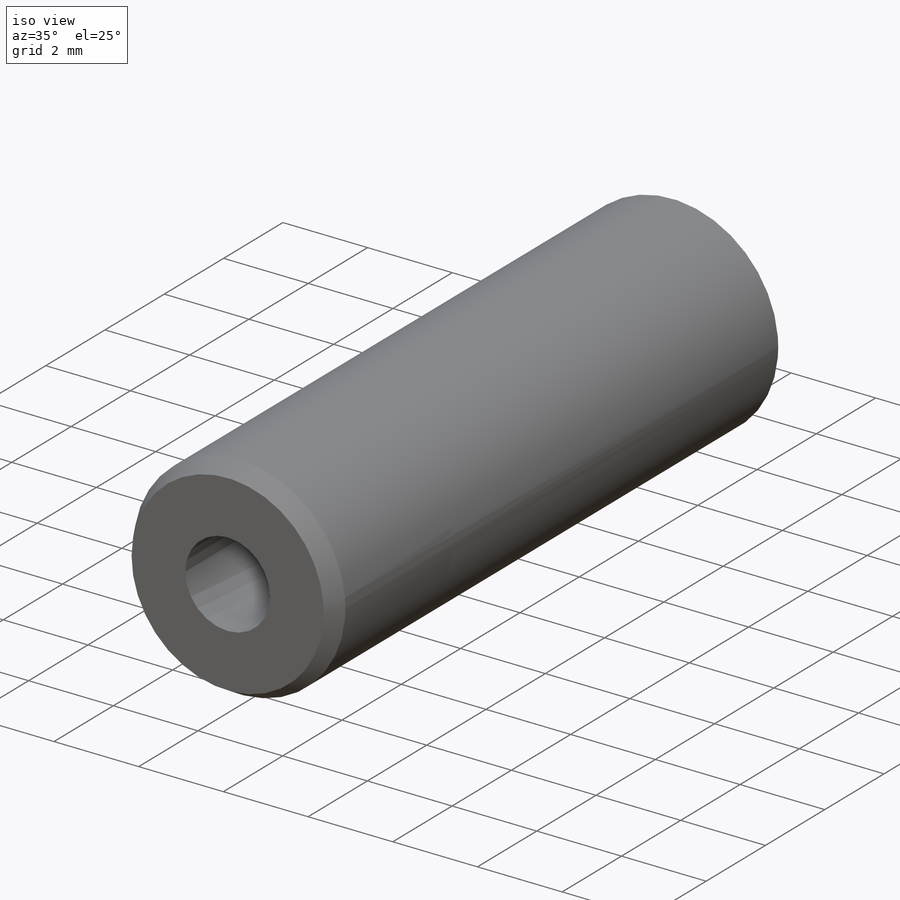
[diagram: iso view]
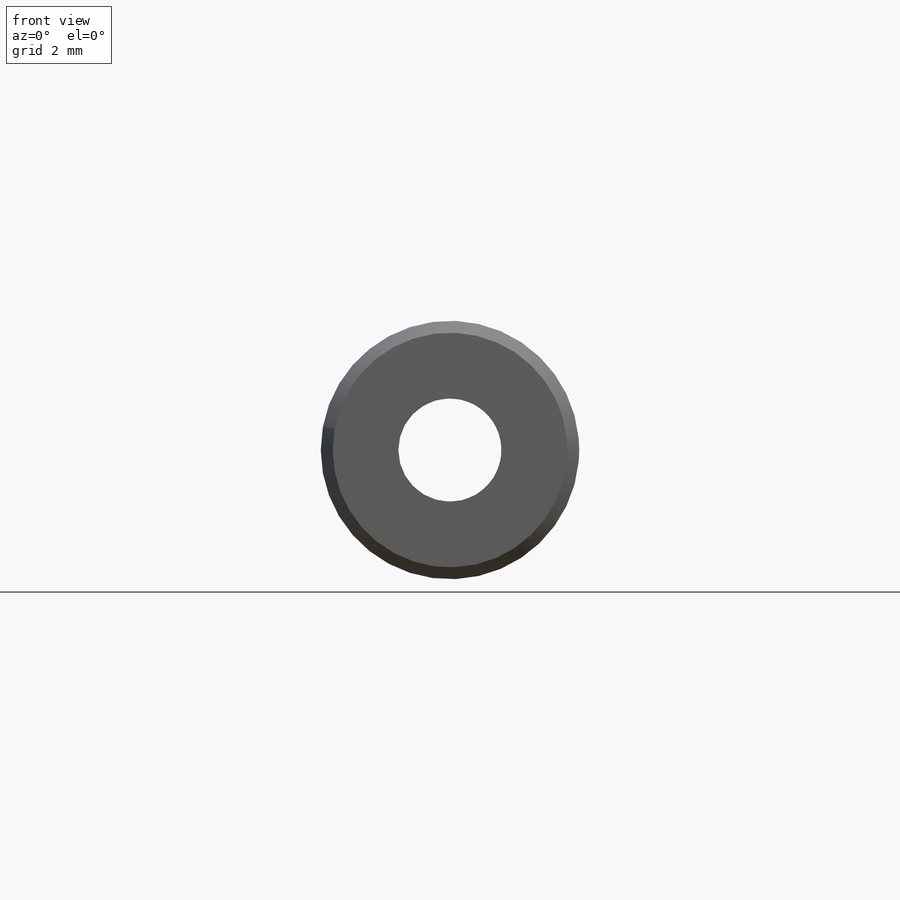
[diagram: front view]
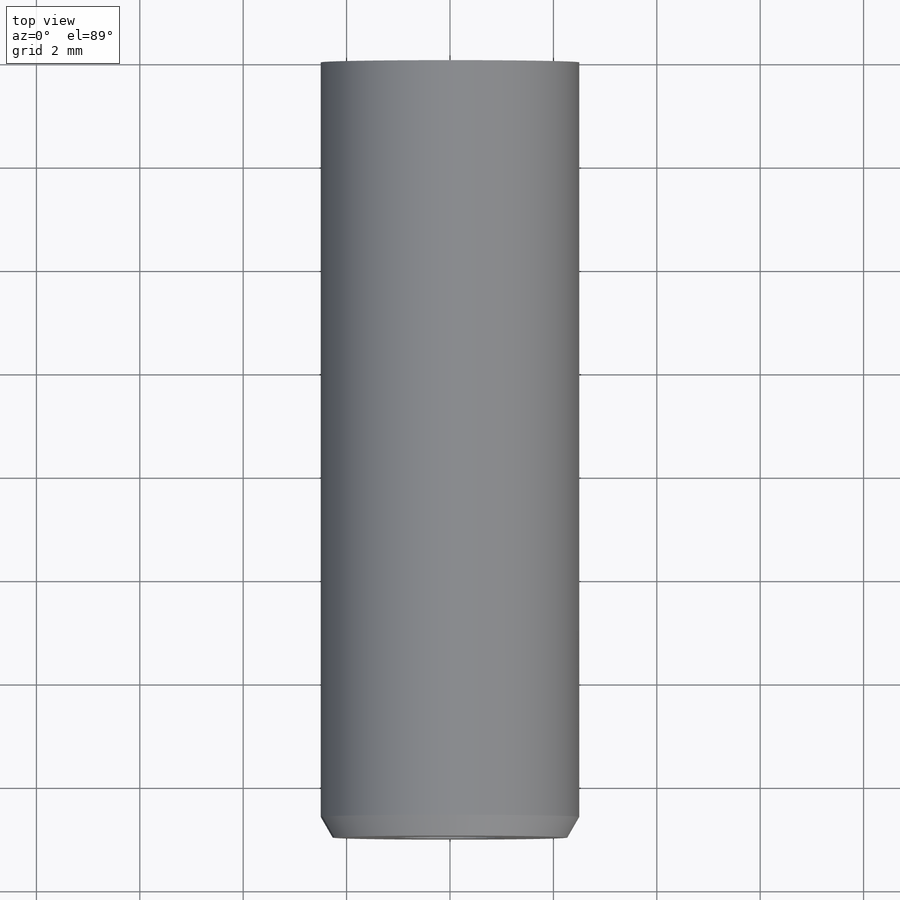
[diagram: top view]
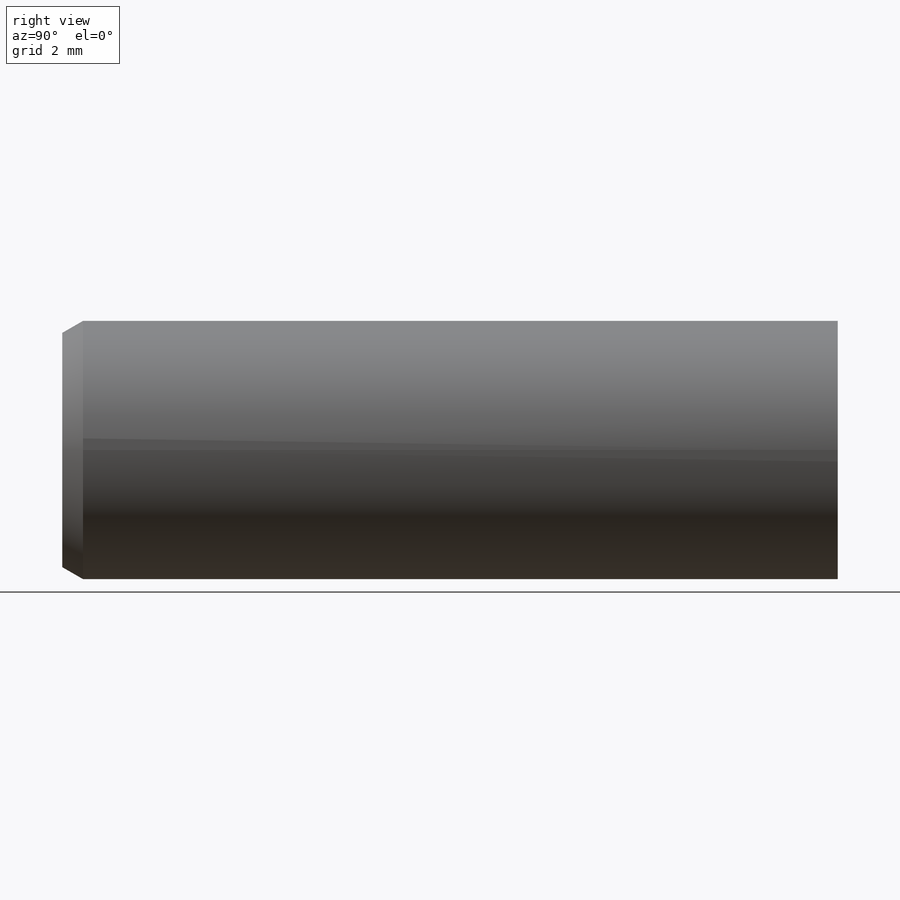
[diagram: right view]
SOLIDWORKS PART (.sldprt)
format: sldprt  version: not decoded by parser v0  size: 175,616 bytes
history: native  units: mm
features: sketch x4, thread x2, chamfer x2, material x1, extrude x1, cut_extrude x1, hole x1 (+16 scaffold rows collapsed)
feature tree (28):
  scaffold x16  (default folders/planes/origin — collapsed)
  material  "Material <not specified>"
  sketch  "Sketch1"  dims[D1=5.0mm]
  extrude  "Boss-Extrude1"  [1 undecoded]
  thread  "Cosmetic Thread2"  Diameter=4mm  [1 undecoded]
  sketch  "Sketch2"  dims[D1=2.0mm]
  cut_extrude  "Cut-Extrude1"  [1 undecoded]
  hole  "Tap Drill for M3x0.5 Tap1"  Diameter=2.5mm Depth=11mm
  sketch  "Sketch4"
  sketch  "Sketch3"  dims[hole-wizard template sketch: 47 standard entries collapsed; hole parameters kept: c15.Hole Depth=11.0mm c15.D3=~14.816244mm c15.Drill Angle=118.0deg]
  thread  "Cosmetic Thread3"  Diameter=10mm  [1 undecoded]
  chamfer  "Chamfer1"  Distance=0.4mm Angle=30deg
  chamfer  "Chamfer2"  Distance=0.4mm Angle=60deg
decode coverage: 8 of 11 modeling features carry decoded parameters
note: ~ marks probable driven/reference dimensions
note: 4 parameter values undecoded
note: suppression state not decoded; provenance and decode notes live in map.json
